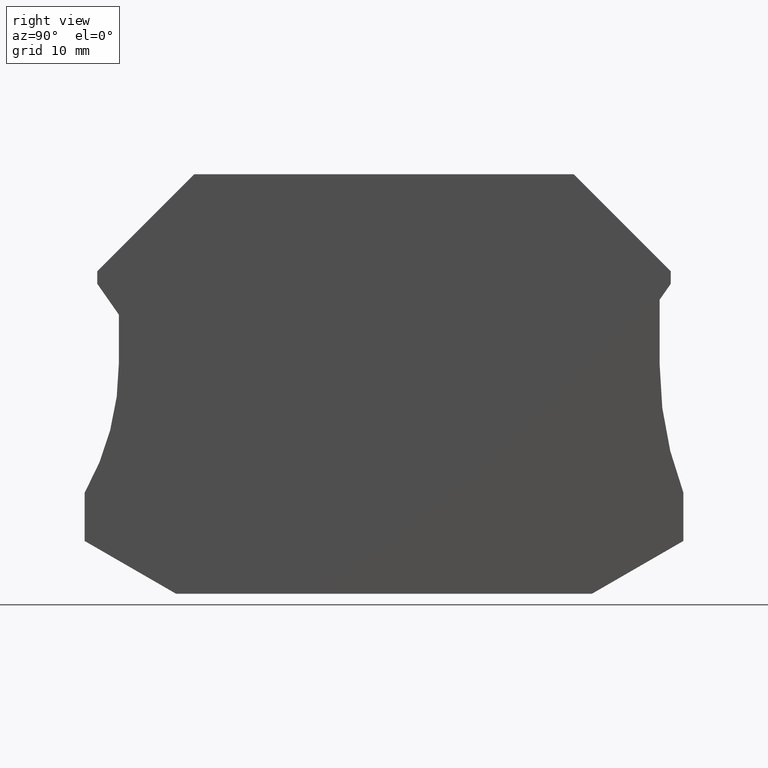
[diagram: clean part render]
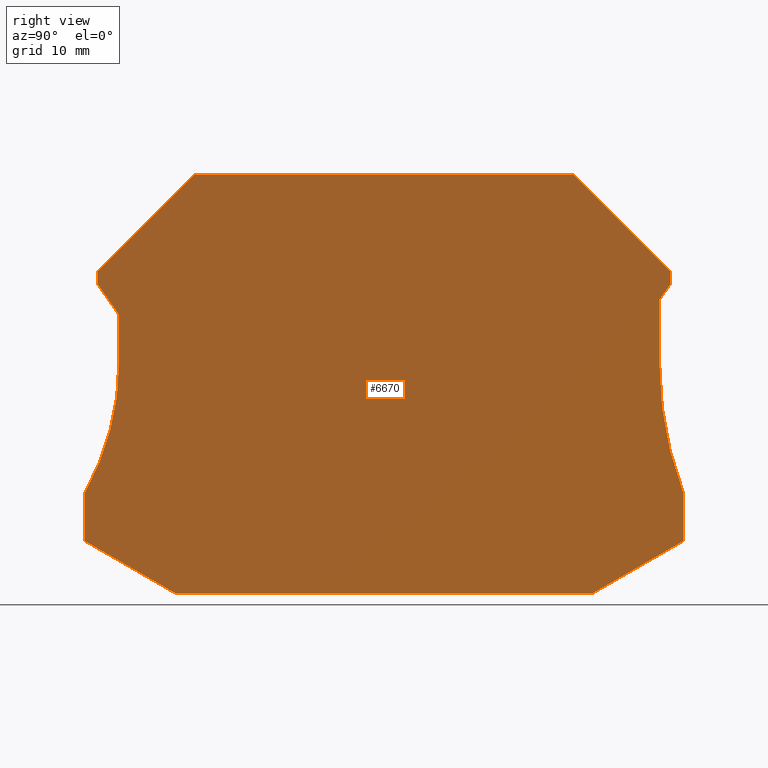
[diagram: same view with one face highlighted and labeled with its STEP entity id]
A machine part, right view. The second image highlights one B-rep face of the part: STEP entity #6670.
In plain terms, the highlighted planar face has unit normal (1, -0, 0).
Its self-contained STEP definition (entity closure, byte-faithful):
#1550=CARTESIAN_POINT('',(61.5296808260507,-27.6500000000088,
2.19999999999998));
#1560=VERTEX_POINT('',#1550);
#1640=CARTESIAN_POINT('',(61.5296808260507,-28.8500000000043,
2.19999999999998));
#1650=VERTEX_POINT('',#1640);
#1680=CARTESIAN_POINT('',(61.5296808260507,-33.886127,2.19999999999998))
;
#1690=DIRECTION('',(0.,1.,0.));
#1700=VECTOR('',#1690,1.);
#1710=LINE('',#1680,#1700);
#1720=EDGE_CURVE('',#1650,#1560,#1710,.T.);
#1890=CARTESIAN_POINT('',(47.920285,-77.4852539852205,2.19999999999998))
;
#1900=DIRECTION('',(-0.866025403784439,0.5,0.));
#1910=VECTOR('',#1900,1.);
#1920=LINE('',#1890,#1910);
#1930=CARTESIAN_POINT('',(14.603847801119,-58.2500000000073,
2.19999999999998));
#1940=VERTEX_POINT('',#1930);
#1950=CARTESIAN_POINT('',(5.92968082605108,-53.2419673619561,
2.19999999999998));
#1960=VERTEX_POINT('',#1950);
#1970=EDGE_CURVE('',#1940,#1960,#1920,.T.);
#2320=CARTESIAN_POINT('',(9.17968082605067,-36.3500000000066,
2.19999999999998));
#2330=VERTEX_POINT('',#2320);
#2360=CARTESIAN_POINT('',(-15.8203191739493,-36.3500000000066,
2.19999999999998));
#2370=DIRECTION('',(0.,0.,1.));
#2380=DIRECTION('',(1.,0.,0.));
#2390=AXIS2_PLACEMENT_3D('',#2360,#2370,#2380);
#2400=CIRCLE('',#2390,25.);
#2410=CARTESIAN_POINT('',(5.92968082605108,-48.676293035627,
2.19999999999998));
#2420=VERTEX_POINT('',#2410);
#2430=EDGE_CURVE('',#2420,#2330,#2400,.T.);
#2700=CARTESIAN_POINT('',(52.3296808260488,-18.4500000000048,
2.19999999999998));
#2710=VERTEX_POINT('',#2700);
#2760=CARTESIAN_POINT('',(67.7658078260404,-33.886127,2.19999999999998))
;
#2770=DIRECTION('',(-0.707106781186466,0.70710678118663,0.));
#2780=VECTOR('',#2770,1.);
#2790=LINE('',#2760,#2780);
#2800=EDGE_CURVE('',#1560,#2710,#2790,.T.);
#3010=CARTESIAN_POINT('',(16.3296808260526,-18.4500000000048,
2.19999999999998));
#3020=VERTEX_POINT('',#3010);
#3070=CARTESIAN_POINT('',(47.920285,-18.4500000000048,2.19999999999998))
;
#3080=DIRECTION('',(1.,-1.61097812794554E-28,0.));
#3090=VECTOR('',#3080,1.);
#3100=LINE('',#3070,#3090);
#3110=EDGE_CURVE('',#3020,#2710,#3100,.T.);
#3280=CARTESIAN_POINT('',(0.893553826060931,-33.886127,2.19999999999998)
);
#3290=DIRECTION('',(0.707106781186466,0.70710678118663,0.));
#3300=VECTOR('',#3290,1.);
#3310=LINE('',#3280,#3300);
#3320=CARTESIAN_POINT('',(7.12968082605067,-27.6500000000088,
2.19999999999998));
#3330=VERTEX_POINT('',#3320);
#3340=EDGE_CURVE('',#3330,#3020,#3310,.T.);
#3590=CARTESIAN_POINT('',(10.6560149148291,-33.886127,2.19999999999998))
;
#3600=DIRECTION('',(-0.573576436351046,0.819152044288992,0.));
#3610=VECTOR('',#3600,1.);
#3620=LINE('',#3590,#3610);
#3630=CARTESIAN_POINT('',(9.17968082605068,-31.7777034138257,
2.19999999999998));
#3640=VERTEX_POINT('',#3630);
#3650=CARTESIAN_POINT('',(7.12968082605067,-28.8500000000043,
2.19999999999998));
#3660=VERTEX_POINT('',#3650);
#3670=EDGE_CURVE('',#3640,#3660,#3620,.T.);
#3970=CARTESIAN_POINT('',(7.12968082605067,-33.886127,2.19999999999998))
;
#3980=DIRECTION('',(0.,1.,0.));
#3990=VECTOR('',#3980,1.);
#4000=LINE('',#3970,#3990);
#4010=EDGE_CURVE('',#3660,#3330,#4000,.T.);
#4240=CARTESIAN_POINT('',(5.92968082605108,-33.886127,2.19999999999998))
;
#4250=DIRECTION('',(-2.77555756156289E-17,-1.,0.));
#4260=VECTOR('',#4250,1.);
#4270=LINE('',#4240,#4260);
#4280=EDGE_CURVE('',#2420,#1960,#4270,.T.);
#4450=CARTESIAN_POINT('',(47.920285,-58.2500000000073,2.19999999999998))
;
#4460=DIRECTION('',(-1.,0.,0.));
#4470=VECTOR('',#4460,1.);
#4480=LINE('',#4450,#4470);
#4490=CARTESIAN_POINT('',(54.0555138509831,-58.2500000000073,
2.19999999999998));
#4500=VERTEX_POINT('',#4490);
#4510=EDGE_CURVE('',#4500,#1940,#4480,.T.);
#4760=CARTESIAN_POINT('',(58.0033467372723,-33.886127,2.19999999999998))
;
#4770=DIRECTION('',(0.573576436351046,0.819152044288992,0.));
#4780=VECTOR('',#4770,1.);
#4790=LINE('',#4760,#4780);
#4800=CARTESIAN_POINT('',(60.4796808260507,-30.3495554070836,
2.19999999999998));
#4810=VERTEX_POINT('',#4800);
#4820=EDGE_CURVE('',#4810,#1650,#4790,.T.);
#5110=CARTESIAN_POINT('',(60.4796808260507,-36.487868155893,
2.19999999999998));
#5120=VERTEX_POINT('',#5110);
#5150=CARTESIAN_POINT('',(60.4796808260507,-33.886127,2.19999999999998))
;
#5160=DIRECTION('',(0.,-1.,0.));
#5170=VECTOR('',#5160,1.);
#5180=LINE('',#5150,#5170);
#5190=EDGE_CURVE('',#4810,#5120,#5180,.T.);
#5440=CARTESIAN_POINT('',(62.7296808260511,-48.6508242110641,
2.19999999999998));
#5450=VERTEX_POINT('',#5440);
#5480=CARTESIAN_POINT('',(94.4796808260507,-36.487868155893,
2.19999999999998));
#5490=DIRECTION('',(0.,0.,1.));
#5500=DIRECTION('',(1.,0.,0.));
#5510=AXIS2_PLACEMENT_3D('',#5480,#5490,#5500);
#5520=CIRCLE('',#5510,34.);
#5530=EDGE_CURVE('',#5120,#5450,#5520,.T.);
#5740=CARTESIAN_POINT('',(62.7296808260511,-53.2419673619561,
2.19999999999998));
#5750=VERTEX_POINT('',#5740);
#5780=CARTESIAN_POINT('',(62.7296808260511,-33.886127,2.19999999999998))
;
#5790=DIRECTION('',(0.,1.,0.));
#5800=VECTOR('',#5790,1.);
#5810=LINE('',#5780,#5800);
#5820=EDGE_CURVE('',#5750,#5450,#5810,.T.);
#6010=CARTESIAN_POINT('',(9.17968082605068,-33.886127,2.19999999999998))
;
#6020=DIRECTION('',(0.,1.,0.));
#6030=VECTOR('',#6020,1.);
#6040=LINE('',#6010,#6030);
#6050=EDGE_CURVE('',#2330,#3640,#6040,.T.);
#6250=CARTESIAN_POINT('',(47.920285,-61.7921760286624,2.19999999999998))
;
#6260=DIRECTION('',(0.866025403784439,0.5,0.));
#6270=VECTOR('',#6260,1.);
#6280=LINE('',#6250,#6270);
#6290=EDGE_CURVE('',#4500,#5750,#6280,.T.);
#6440=CARTESIAN_POINT('',(38.6361215118332,-55.6492949760279,
2.19999999999998));
#6450=DIRECTION('',(0.,0.,1.));
#6460=DIRECTION('',(1.,0.,0.));
#6470=AXIS2_PLACEMENT_3D('',#6440,#6450,#6460);
#6480=PLANE('',#6470);
#6490=ORIENTED_EDGE('',*,*,#4280,.T.);
#6500=ORIENTED_EDGE('',*,*,#2430,.F.);
#6510=ORIENTED_EDGE('',*,*,#6050,.F.);
#6520=ORIENTED_EDGE('',*,*,#3670,.F.);
#6530=ORIENTED_EDGE('',*,*,#4010,.F.);
#6540=ORIENTED_EDGE('',*,*,#3340,.F.);
#6550=ORIENTED_EDGE('',*,*,#3110,.F.);
#6560=ORIENTED_EDGE('',*,*,#2800,.T.);
#6570=ORIENTED_EDGE('',*,*,#1720,.T.);
#6580=ORIENTED_EDGE('',*,*,#4820,.T.);
#6590=ORIENTED_EDGE('',*,*,#5190,.F.);
#6600=ORIENTED_EDGE('',*,*,#5530,.F.);
#6610=ORIENTED_EDGE('',*,*,#5820,.T.);
#6620=ORIENTED_EDGE('',*,*,#6290,.T.);
#6630=ORIENTED_EDGE('',*,*,#4510,.F.);
#6640=ORIENTED_EDGE('',*,*,#1970,.F.);
#6650=EDGE_LOOP('',(#6640,#6630,#6620,#6610,#6600,#6590,#6580,#6570,
#6560,#6550,#6540,#6530,#6520,#6510,#6500,#6490));
#6660=FACE_OUTER_BOUND('',#6650,.T.);
#6670=ADVANCED_FACE('',(#6660),#6480,.T.);